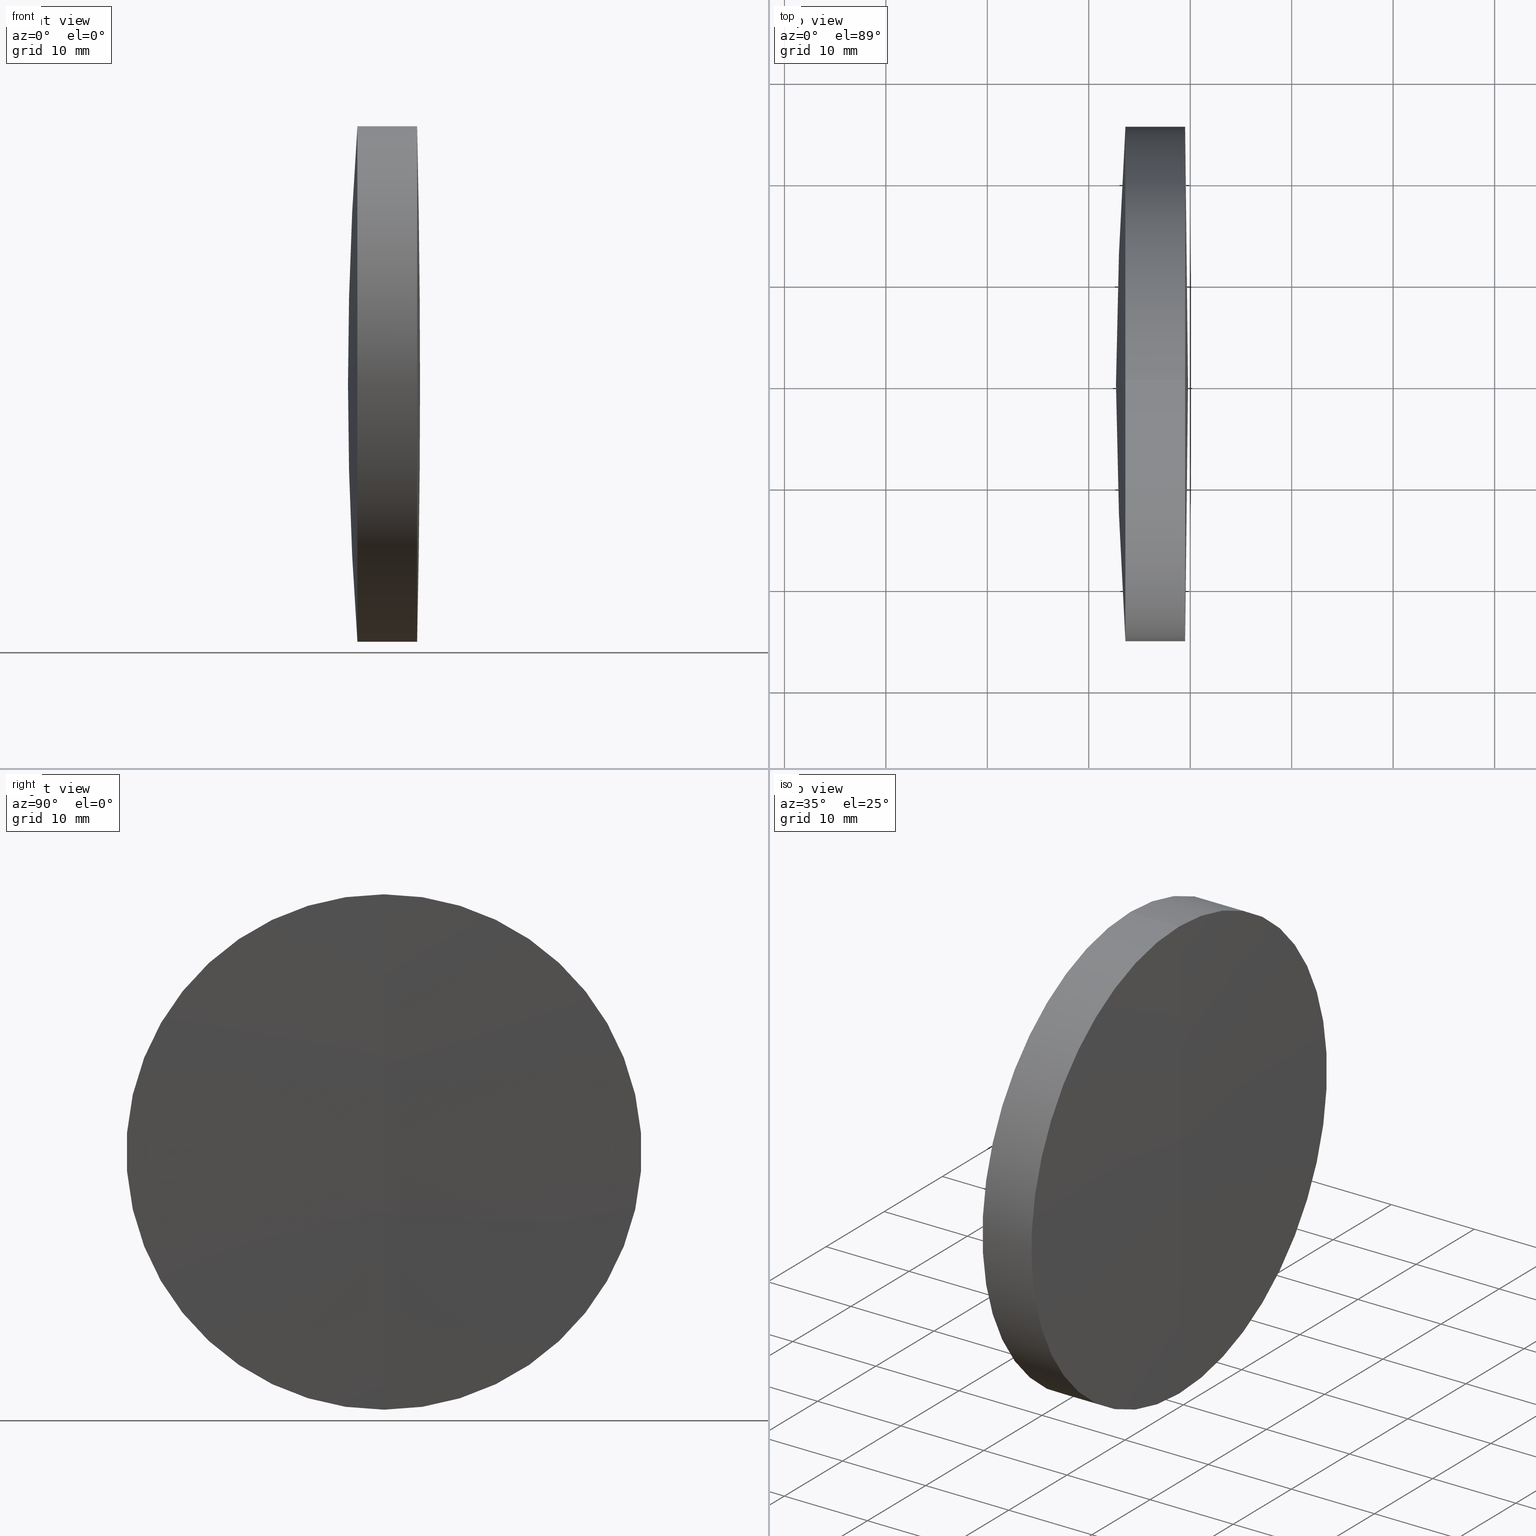
[diagram: canonical four-view strip — front | top / right | iso, engineering-drawing reading convention]
A machine part, canonical four-view strip (front | top / right | iso — engineering-drawing reading convention). The complete STEP part file that produces these views, byte-faithful:
ISO-10303-21;
HEADER;
FILE_DESCRIPTION (( 'STEP AP214' ),
    '1' );
FILE_NAME ('145141.STEP',
    '2019-06-05T05:40:33',
    ( 'user' ),
    ( '΢���й�' ),
    'SwSTEP 2.0',
    'SolidWorks 2016',
    '' );
FILE_SCHEMA (( 'AUTOMOTIVE_DESIGN' ));
ENDSEC;

DATA;
#1 = DIRECTION ( 'NONE',  ( 0.0000000000000000000, 0.0000000000000000000, 1.000000000000000000 ) ) ;
#2 = CARTESIAN_POINT ( 'NONE',  ( -412.6194407256770100, 0.0000000000000000000, 0.0000000000000000000 ) ) ;
#3 = SURFACE_STYLE_USAGE ( .BOTH. , #309 ) ;
#4 = DIRECTION ( 'NONE',  ( 0.0000000000000000000, 0.0000000000000000000, 1.000000000000000000 ) ) ;
#5 = AXIS2_PLACEMENT_3D ( 'NONE', #252, #202, #262 ) ;
#6 = EDGE_CURVE ( 'NONE', #163, #120, #19, .T. ) ;
#7 = PRODUCT_CONTEXT ( 'NONE', #278, 'mechanical' ) ;
#8 = CARTESIAN_POINT ( 'NONE',  ( 719.7805592743228500, 0.0000000000000000000, 6.933950176772312400E-014 ) ) ;
#9 = FACE_OUTER_BOUND ( 'NONE', #247, .T. ) ;
#10 = ORIENTED_EDGE ( 'NONE', *, *, #70, .F. ) ;
#11 = FILL_AREA_STYLE ('',( #84 ) ) ;
#12 = SHAPE_DEFINITION_REPRESENTATION ( #346, #165 ) ;
#13 = VERTEX_POINT ( 'NONE', #8 ) ;
#14 = AXIS2_PLACEMENT_3D ( 'NONE', #74, #158, #142 ) ;
#15 = DIRECTION ( 'NONE',  ( 0.0000000000000000000, 0.0000000000000000000, 1.000000000000000000 ) ) ;
#16 = DIRECTION ( 'NONE',  ( -1.000000000000000000, -0.0000000000000000000, -0.0000000000000000000 ) ) ;
#17 = DIRECTION ( 'NONE',  ( 0.0000000000000000000, 0.0000000000000000000, 1.000000000000000000 ) ) ;
#18 = ORIENTED_EDGE ( 'NONE', *, *, #317, .T. ) ;
#19 = CIRCLE ( 'NONE', #253, 25.40000000000006300 ) ;
#20 = STYLED_ITEM ( 'NONE', ( #178 ), #165 ) ;
#21 = DIRECTION ( 'NONE',  ( 0.0000000000000000000, 0.0000000000000000000, -1.000000000000000000 ) ) ;
#22 = AXIS2_PLACEMENT_3D ( 'NONE', #115, #271, #15 ) ;
#23 = ORIENTED_EDGE ( 'NONE', *, *, #141, .F. ) ;
#24 = PRODUCT_DEFINITION ( 'δ֪', '', #343, #174 ) ;
#25 = EDGE_LOOP ( 'NONE', ( #104, #276, #224 ) ) ;
#26 = ORIENTED_EDGE ( 'NONE', *, *, #148, .F. ) ;
#27 = FILL_AREA_STYLE ('',( #77 ) ) ;
#28 = SPHERICAL_SURFACE ( 'NONE', #242, 346.7000000000001000 ) ;
#29 = ORIENTED_EDGE ( 'NONE', *, *, #279, .T. ) ;
#30 = SPHERICAL_SURFACE ( 'NONE', #14, 259.3999999999999800 ) ;
#31 = DIRECTION ( 'NONE',  ( 0.0000000000000000000, 0.0000000000000000000, 1.000000000000000000 ) ) ;
#32 = AXIS2_PLACEMENT_3D ( 'NONE', #199, #325, #1 ) ;
#33 = DIRECTION ( 'NONE',  ( 0.0000000000000000000, -1.000000000000000000, 0.0000000000000000000 ) ) ;
#34 = MECHANICAL_DESIGN_GEOMETRIC_PRESENTATION_REPRESENTATION (  '', ( #20 ), #201 ) ;
#35 =( NAMED_UNIT ( * ) PLANE_ANGLE_UNIT ( ) SI_UNIT ( $, .RADIAN. ) );
#36 = ORIENTED_EDGE ( 'NONE', *, *, #179, .F. ) ;
#37 = ORIENTED_EDGE ( 'NONE', *, *, #50, .F. ) ;
#38 = AXIS2_PLACEMENT_3D ( 'NONE', #219, #275, #88 ) ;
#39 = SPHERICAL_SURFACE ( 'NONE', #289, 346.7000000000001000 ) ;
#40 = EDGE_CURVE ( 'NONE', #231, #59, #86, .T. ) ;
#41 = DIRECTION ( 'NONE',  ( 0.0000000000000000000, 0.0000000000000000000, 1.000000000000000000 ) ) ;
#42 = AXIS2_PLACEMENT_3D ( 'NONE', #312, #113, #118 ) ;
#43 = MANIFOLD_SOLID_BREP ( '��ת1', #338 ) ;
#44 = ORIENTED_EDGE ( 'NONE', *, *, #141, .T. ) ;
#45 = CIRCLE ( 'NONE', #5, 25.39999999999999100 ) ;
#46 = SPHERICAL_SURFACE ( 'NONE', #239, 1132.399999999999900 ) ;
#47 = ADVANCED_FACE ( 'NONE', ( #132 ), #145, .T. ) ;
#48 = MECHANICAL_DESIGN_GEOMETRIC_PRESENTATION_REPRESENTATION (  '', ( #63 ), #259 ) ;
#49 = CIRCLE ( 'NONE', #313, 25.40000000000006300 ) ;
#50 = EDGE_CURVE ( 'NONE', #168, #297, #187, .T. ) ;
#51 =( NAMED_UNIT ( * ) SI_UNIT ( $, .STERADIAN. ) SOLID_ANGLE_UNIT ( ) );
#52 = DIRECTION ( 'NONE',  ( 0.0000000000000000000, 1.000000000000000000, 0.0000000000000000000 ) ) ;
#53 = ORIENTED_EDGE ( 'NONE', *, *, #317, .F. ) ;
#54 = CIRCLE ( 'NONE', #206, 25.39999999999999100 ) ;
#55 = CARTESIAN_POINT ( 'NONE',  ( 124.5233095260452400, 0.0000000000000000000, 0.0000000000000000000 ) ) ;
#56 = EDGE_CURVE ( 'NONE', #59, #197, #265, .T. ) ;
#57 = AXIS2_PLACEMENT_3D ( 'NONE', #229, #258, #159 ) ;
#58 = CARTESIAN_POINT ( 'NONE',  ( 715.9340020172002100, 0.0000000000000000000, 0.0000000000000000000 ) ) ;
#59 = VERTEX_POINT ( 'NONE', #345 ) ;
#60 = EDGE_LOOP ( 'NONE', ( #53, #76, #44, #196 ) ) ;
#61 = DIRECTION ( 'NONE',  ( -1.000000000000000000, -0.0000000000000000000, -0.0000000000000000000 ) ) ;
#62 = ORIENTED_EDGE ( 'NONE', *, *, #194, .F. ) ;
#63 = STYLED_ITEM ( 'NONE', ( #269 ), #43 ) ;
#64 = DIRECTION ( 'NONE',  ( 0.0000000000000000000, 0.0000000000000000000, 1.000000000000000000 ) ) ;
#65 = EDGE_CURVE ( 'NONE', #297, #59, #336, .T. ) ;
#66 = FACE_OUTER_BOUND ( 'NONE', #332, .T. ) ;
#67 = CARTESIAN_POINT ( 'NONE',  ( 719.4956594297797200, 0.0000000000000000000, 0.0000000000000000000 ) ) ;
#68 = EDGE_LOOP ( 'NONE', ( #288, #18, #181, #23 ) ) ;
#69 = PRESENTATION_LAYER_ASSIGNMENT (  '', '', ( #20 ) ) ;
#70 = EDGE_CURVE ( 'NONE', #97, #120, #344, .T. ) ;
#71 = PRESENTATION_STYLE_ASSIGNMENT (( #3 ) ) ;
#72 = VECTOR ( 'NONE', #331, 1000.000000000000000 ) ;
#73 = CARTESIAN_POINT ( 'NONE',  ( -0.5519199926577972300, 3.110602869834265800E-015, -25.39999999999991000 ) ) ;
#74 = CARTESIAN_POINT ( 'NONE',  ( 457.7805592743230200, 0.0000000000000000000, -6.453996819439198100E-015 ) ) ;
#75 = VERTEX_POINT ( 'NONE', #302 ) ;
#76 = ORIENTED_EDGE ( 'NONE', *, *, #179, .T. ) ;
#77 = FILL_AREA_STYLE_COLOUR ( '', #130 ) ;
#78 = CARTESIAN_POINT ( 'NONE',  ( 715.9340020172002100, 0.0000000000000000000, 25.39999999999999100 ) ) ;
#79 = VERTEX_POINT ( 'NONE', #218 ) ;
#80 = CARTESIAN_POINT ( 'NONE',  ( 715.9340020172002100, 3.110602869834276100E-015, -25.39999999999999100 ) ) ;
#81 = AXIS2_PLACEMENT_3D ( 'NONE', #94, #33, #228 ) ;
#82 = CARTESIAN_POINT ( 'NONE',  ( -0.5519199926577972300, 0.0000000000000000000, 25.39999999999991000 ) ) ;
#83 = CARTESIAN_POINT ( 'NONE',  ( 124.5233095260452400, 0.0000000000000000000, 25.39999999999999100 ) ) ;
#84 = FILL_AREA_STYLE_COLOUR ( '', #291 ) ;
#85 = CYLINDRICAL_SURFACE ( 'NONE', #192, 25.39999999999999100 ) ;
#86 = LINE ( 'NONE', #250, #125 ) ;
#87 = ADVANCED_FACE ( 'NONE', ( #274 ), #28, .T. ) ;
#88 = DIRECTION ( 'NONE',  ( 0.0000000000000000000, 0.0000000000000000000, -1.000000000000000000 ) ) ;
#89 = DIRECTION ( 'NONE',  ( 0.0000000000000000000, 0.0000000000000000000, 1.000000000000000000 ) ) ;
#90 = CARTESIAN_POINT ( 'NONE',  ( 715.9340020172002100, 0.0000000000000000000, 0.0000000000000000000 ) ) ;
#91 = CARTESIAN_POINT ( 'NONE',  ( 1059.380559274323100, 0.0000000000000000000, -5.039959363390816900E-015 ) ) ;
#92 = EDGE_LOOP ( 'NONE', ( #261, #152, #154 ) ) ;
#93 = PRESENTATION_LAYER_ASSIGNMENT (  '', '', ( #63 ) ) ;
#94 = CARTESIAN_POINT ( 'NONE',  ( -412.6194407256770100, 0.0000000000000000000, 0.0000000000000000000 ) ) ;
#95 = DIRECTION ( 'NONE',  ( -1.000000000000000000, -0.0000000000000000000, -0.0000000000000000000 ) ) ;
#96 = ORIENTED_EDGE ( 'NONE', *, *, #148, .T. ) ;
#97 = VERTEX_POINT ( 'NONE', #112 ) ;
#98 = CARTESIAN_POINT ( 'NONE',  ( 1059.380559274323100, 0.0000000000000000000, -5.039959363390816900E-015 ) ) ;
#99 = VECTOR ( 'NONE', #16, 1000.000000000000000 ) ;
#100 = APPLICATION_PROTOCOL_DEFINITION ( 'draft international standard', 'automotive_design', 1998, #278 ) ;
#101 = CIRCLE ( 'NONE', #42, 259.3999999999999800 ) ;
#102 = CARTESIAN_POINT ( 'NONE',  ( 457.7805592743230200, 0.0000000000000000000, -6.453996819439198100E-015 ) ) ;
#103 = AXIS2_PLACEMENT_3D ( 'NONE', #232, #4, #272 ) ;
#104 = ORIENTED_EDGE ( 'NONE', *, *, #335, .F. ) ;
#105 = PRODUCT ( '145141', '145141', '', ( #7 ) ) ;
#106 = ORIENTED_EDGE ( 'NONE', *, *, #56, .T. ) ;
#107 = AXIS2_PLACEMENT_3D ( 'NONE', #127, #347, #327 ) ;
#108 = DIRECTION ( 'NONE',  ( 0.0000000000000000000, 1.000000000000000000, 0.0000000000000000000 ) ) ;
#109 = DIRECTION ( 'NONE',  ( -1.000000000000000000, -0.0000000000000000000, -0.0000000000000000000 ) ) ;
#110 = AXIS2_PLACEMENT_3D ( 'NONE', #341, #214, #21 ) ;
#111 = EDGE_CURVE ( 'NONE', #120, #163, #49, .T. ) ;
#112 = CARTESIAN_POINT ( 'NONE',  ( 717.1805592743230600, 0.0000000000000000000, 9.429672165501970000E-015 ) ) ;
#113 = DIRECTION ( 'NONE',  ( -0.0000000000000000000, 1.000000000000000000, 1.224646799147353200E-016 ) ) ;
#114 = CARTESIAN_POINT ( 'NONE',  ( -0.5519199926577972300, 0.0000000000000000000, 0.0000000000000000000 ) ) ;
#115 = CARTESIAN_POINT ( 'NONE',  ( 713.6122408875742200, 0.0000000000000000000, 0.0000000000000000000 ) ) ;
#116 = DIRECTION ( 'NONE',  ( 0.0000000000000000000, 1.000000000000000000, 0.0000000000000000000 ) ) ;
#117 = MECHANICAL_DESIGN_GEOMETRIC_PRESENTATION_REPRESENTATION (  '', ( #213 ), #155 ) ;
#118 = DIRECTION ( 'NONE',  ( 0.0000000000000000000, -1.224646799147353200E-016, 1.000000000000000000 ) ) ;
#119 = CARTESIAN_POINT ( 'NONE',  ( 457.7805592743230200, 0.0000000000000000000, -6.453996819439198100E-015 ) ) ;
#120 = VERTEX_POINT ( 'NONE', #221 ) ;
#121 = DIRECTION ( 'NONE',  ( 0.0000000000000000000, -1.000000000000000000, 0.0000000000000000000 ) ) ;
#122 = CARTESIAN_POINT ( 'NONE',  ( 713.6122408875742200, 0.0000000000000000000, 0.0000000000000000000 ) ) ;
#123 = AXIS2_PLACEMENT_3D ( 'NONE', #119, #116, #17 ) ;
#124 = ORIENTED_EDGE ( 'NONE', *, *, #186, .T. ) ;
#125 = VECTOR ( 'NONE', #61, 1000.000000000000000 ) ;
#126 = CLOSED_SHELL ( 'NONE', ( #47, #326, #287, #266, #147, #235 ) ) ;
#127 = CARTESIAN_POINT ( 'NONE',  ( 1059.380559274323100, 0.0000000000000000000, -5.039959363390816900E-015 ) ) ;
#128 = CARTESIAN_POINT ( 'NONE',  ( 717.1805592743230600, 0.0000000000000000000, 9.429672165501970000E-015 ) ) ;
#129 = DIRECTION ( 'NONE',  ( 0.0000000000000000000, 0.0000000000000000000, 1.000000000000000000 ) ) ;
#130 = COLOUR_RGB ( '',1.000000000000000000, 1.000000000000000000, 1.000000000000000000 ) ;
#131 = DIRECTION ( 'NONE',  ( -1.000000000000000000, -0.0000000000000000000, -0.0000000000000000000 ) ) ;
#132 = FACE_OUTER_BOUND ( 'NONE', #268, .T. ) ;
#133 = CIRCLE ( 'NONE', #285, 259.3999999999999800 ) ;
#134 = AXIS2_PLACEMENT_3D ( 'NONE', #114, #306, #41 ) ;
#135 = EDGE_LOOP ( 'NONE', ( #26, #321, #175 ) ) ;
#136 = ADVANCED_FACE ( 'NONE', ( #9 ), #85, .T. ) ;
#137 = SURFACE_SIDE_STYLE ('',( #328 ) ) ;
#138 = AXIS2_PLACEMENT_3D ( 'NONE', #298, #109, #31 ) ;
#139 = SURFACE_STYLE_FILL_AREA ( #248 ) ;
#140 = EDGE_LOOP ( 'NONE', ( #150, #236, #234 ) ) ;
#141 = EDGE_CURVE ( 'NONE', #75, #120, #225, .T. ) ;
#142 = DIRECTION ( 'NONE',  ( 0.0000000000000000000, 0.0000000000000000000, 1.000000000000000000 ) ) ;
#143 = DIRECTION ( 'NONE',  ( -1.000000000000000000, -0.0000000000000000000, -0.0000000000000000000 ) ) ;
#144 = AXIS2_PLACEMENT_3D ( 'NONE', #122, #183, #160 ) ;
#145 = SPHERICAL_SURFACE ( 'NONE', #32, 1132.399999999999900 ) ;
#146 = ORIENTED_EDGE ( 'NONE', *, *, #227, .T. ) ;
#147 = ADVANCED_FACE ( 'NONE', ( #237 ), #318, .T. ) ;
#148 = EDGE_CURVE ( 'NONE', #97, #163, #101, .T. ) ;
#149 = ORIENTED_EDGE ( 'NONE', *, *, #40, .F. ) ;
#150 = ORIENTED_EDGE ( 'NONE', *, *, #56, .F. ) ;
#151 =( LENGTH_UNIT ( ) NAMED_UNIT ( * ) SI_UNIT ( .MILLI., .METRE. ) );
#152 = ORIENTED_EDGE ( 'NONE', *, *, #335, .T. ) ;
#153 = UNCERTAINTY_MEASURE_WITH_UNIT (LENGTH_MEASURE( 1.000000000000000100E-005 ), #216, 'distance_accuracy_value', 'NONE');
#154 = ORIENTED_EDGE ( 'NONE', *, *, #279, .F. ) ;
#155 =( GEOMETRIC_REPRESENTATION_CONTEXT ( 3 ) GLOBAL_UNCERTAINTY_ASSIGNED_CONTEXT ( ( #200 ) ) GLOBAL_UNIT_ASSIGNED_CONTEXT ( ( #193, #254, #257 ) ) REPRESENTATION_CONTEXT ( 'NONE', 'WORKASPACE' ) );
#156 = DIRECTION ( 'NONE',  ( -1.000000000000000000, -0.0000000000000000000, -0.0000000000000000000 ) ) ;
#157 = ORIENTED_EDGE ( 'NONE', *, *, #230, .F. ) ;
#158 = DIRECTION ( 'NONE',  ( 0.0000000000000000000, 1.000000000000000000, 0.0000000000000000000 ) ) ;
#159 = DIRECTION ( 'NONE',  ( 0.0000000000000000000, 0.0000000000000000000, 1.000000000000000000 ) ) ;
#160 = DIRECTION ( 'NONE',  ( 0.0000000000000000000, 0.0000000000000000000, 1.000000000000000000 ) ) ;
#161 = DIRECTION ( 'NONE',  ( 0.0000000000000000000, 1.000000000000000000, 0.0000000000000000000 ) ) ;
#162 = DIRECTION ( 'NONE',  ( 0.0000000000000000000, 0.0000000000000000000, 1.000000000000000000 ) ) ;
#163 = VERTEX_POINT ( 'NONE', #245 ) ;
#164 = FACE_OUTER_BOUND ( 'NONE', #92, .T. ) ;
#165 = ADVANCED_BREP_SHAPE_REPRESENTATION ( '145141', ( #43, #188, #103 ), #273 ) ;
#166 = CARTESIAN_POINT ( 'NONE',  ( 715.9340020172002100, 0.0000000000000000000, 0.0000000000000000000 ) ) ;
#167 = SURFACE_STYLE_USAGE ( .BOTH. , #270 ) ;
#168 = VERTEX_POINT ( 'NONE', #78 ) ;
#169 = EDGE_CURVE ( 'NONE', #168, #231, #54, .T. ) ;
#170 = DIRECTION ( 'NONE',  ( 0.0000000000000000000, 0.0000000000000000000, 1.000000000000000000 ) ) ;
#171 = DIRECTION ( 'NONE',  ( -0.0000000000000000000, 1.000000000000000000, 1.224646799147353200E-016 ) ) ;
#172 = APPLICATION_PROTOCOL_DEFINITION ( 'draft international standard', 'automotive_design', 1998, #180 ) ;
#173 = ORIENTED_EDGE ( 'NONE', *, *, #65, .F. ) ;
#174 = PRODUCT_DEFINITION_CONTEXT ( 'detailed design', #180, 'design' ) ;
#175 = ORIENTED_EDGE ( 'NONE', *, *, #111, .T. ) ;
#176 = ADVANCED_FACE ( 'NONE', ( #66 ), #293, .T. ) ;
#177 = AXIS2_PLACEMENT_3D ( 'NONE', #185, #233, #170 ) ;
#178 = PRESENTATION_STYLE_ASSIGNMENT (( #167 ) ) ;
#179 = EDGE_CURVE ( 'NONE', #79, #75, #281, .T. ) ;
#180 = APPLICATION_CONTEXT ( 'automotive_design' ) ;
#181 = ORIENTED_EDGE ( 'NONE', *, *, #111, .F. ) ;
#182 = SPHERICAL_SURFACE ( 'NONE', #123, 259.3999999999999800 ) ;
#183 = DIRECTION ( 'NONE',  ( -1.000000000000000000, -0.0000000000000000000, -0.0000000000000000000 ) ) ;
#184 = PRESENTATION_LAYER_ASSIGNMENT (  '', '', ( #213 ) ) ;
#185 = CARTESIAN_POINT ( 'NONE',  ( 457.7805592743230200, 0.0000000000000000000, -6.453996819439198100E-015 ) ) ;
#186 = EDGE_CURVE ( 'NONE', #13, #75, #329, .T. ) ;
#187 = LINE ( 'NONE', #83, #99 ) ;
#188 = MANIFOLD_SOLID_BREP ( '��ת3', #126 ) ;
#189 = DIRECTION ( 'NONE',  ( 0.0000000000000000000, 0.0000000000000000000, 1.000000000000000000 ) ) ;
#190 = FACE_OUTER_BOUND ( 'NONE', #25, .T. ) ;
#191 = DIRECTION ( 'NONE',  ( -0.0000000000000000000, 1.000000000000000000, 1.224646799147353200E-016 ) ) ;
#192 = AXIS2_PLACEMENT_3D ( 'NONE', #55, #251, #203 ) ;
#193 =( LENGTH_UNIT ( ) NAMED_UNIT ( * ) SI_UNIT ( .MILLI., .METRE. ) );
#194 = EDGE_CURVE ( 'NONE', #75, #79, #205, .T. ) ;
#195 = FILL_AREA_STYLE_COLOUR ( '', #311 ) ;
#196 = ORIENTED_EDGE ( 'NONE', *, *, #6, .F. ) ;
#197 = VERTEX_POINT ( 'NONE', #290 ) ;
#198 = SPHERICAL_SURFACE ( 'NONE', #177, 259.3999999999999800 ) ;
#199 = CARTESIAN_POINT ( 'NONE',  ( -412.6194407256770100, 0.0000000000000000000, 0.0000000000000000000 ) ) ;
#200 = UNCERTAINTY_MEASURE_WITH_UNIT (LENGTH_MEASURE( 1.000000000000000100E-005 ), #193, 'distance_accuracy_value', 'NONE');
#201 =( GEOMETRIC_REPRESENTATION_CONTEXT ( 3 ) GLOBAL_UNCERTAINTY_ASSIGNED_CONTEXT ( ( #153 ) ) GLOBAL_UNIT_ASSIGNED_CONTEXT ( ( #216, #342, #51 ) ) REPRESENTATION_CONTEXT ( 'NONE', 'WORKASPACE' ) );
#202 = DIRECTION ( 'NONE',  ( -1.000000000000000000, -0.0000000000000000000, -0.0000000000000000000 ) ) ;
#203 = DIRECTION ( 'NONE',  ( 0.0000000000000000000, 0.0000000000000000000, 1.000000000000000000 ) ) ;
#204 = FACE_OUTER_BOUND ( 'NONE', #140, .T. ) ;
#205 = CIRCLE ( 'NONE', #226, 25.39999999999975700 ) ;
#206 = AXIS2_PLACEMENT_3D ( 'NONE', #90, #131, #334 ) ;
#207 = VERTEX_POINT ( 'NONE', #128 ) ;
#208 = EDGE_CURVE ( 'NONE', #207, #231, #314, .T. ) ;
#209 = LINE ( 'NONE', #73, #72 ) ;
#210 = CARTESIAN_POINT ( 'NONE',  ( 457.7805592743230200, 0.0000000000000000000, -6.453996819439198100E-015 ) ) ;
#211 = ORIENTED_EDGE ( 'NONE', *, *, #186, .F. ) ;
#212 = DIRECTION ( 'NONE',  ( -1.000000000000000000, -0.0000000000000000000, -0.0000000000000000000 ) ) ;
#213 = STYLED_ITEM ( 'NONE', ( #71 ), #188 ) ;
#214 = DIRECTION ( 'NONE',  ( 0.0000000000000000000, -1.000000000000000000, 0.0000000000000000000 ) ) ;
#215 = VECTOR ( 'NONE', #156, 1000.000000000000000 ) ;
#216 =( LENGTH_UNIT ( ) NAMED_UNIT ( * ) SI_UNIT ( .MILLI., .METRE. ) );
#217 = FACE_OUTER_BOUND ( 'NONE', #135, .T. ) ;
#218 = CARTESIAN_POINT ( 'NONE',  ( 719.4956594297797200, 3.110602869834256700E-015, -25.39999999999975700 ) ) ;
#219 = CARTESIAN_POINT ( 'NONE',  ( 457.7805592743230200, 0.0000000000000000000, -6.453996819439198100E-015 ) ) ;
#220 = AXIS2_PLACEMENT_3D ( 'NONE', #337, #52, #244 ) ;
#221 = CARTESIAN_POINT ( 'NONE',  ( 715.9340020172002100, 0.0000000000000000000, 25.39999999999994500 ) ) ;
#222 = EDGE_LOOP ( 'NONE', ( #280, #106, #157 ) ) ;
#223 = DIRECTION ( 'NONE',  ( -1.000000000000000000, -0.0000000000000000000, -0.0000000000000000000 ) ) ;
#224 = ORIENTED_EDGE ( 'NONE', *, *, #169, .F. ) ;
#225 = LINE ( 'NONE', #82, #215 ) ;
#226 = AXIS2_PLACEMENT_3D ( 'NONE', #67, #95, #89 ) ;
#227 = EDGE_CURVE ( 'NONE', #13, #79, #340, .T. ) ;
#228 = DIRECTION ( 'NONE',  ( 0.0000000000000000000, 0.0000000000000000000, -1.000000000000000000 ) ) ;
#229 = CARTESIAN_POINT ( 'NONE',  ( 124.5233095260452400, 0.0000000000000000000, 0.0000000000000000000 ) ) ;
#230 = EDGE_CURVE ( 'NONE', #297, #197, #316, .T. ) ;
#231 = VERTEX_POINT ( 'NONE', #80 ) ;
#232 = CARTESIAN_POINT ( 'NONE',  ( 0.0000000000000000000, 0.0000000000000000000, 0.0000000000000000000 ) ) ;
#233 = DIRECTION ( 'NONE',  ( 0.0000000000000000000, 1.000000000000000000, 0.0000000000000000000 ) ) ;
#234 = ORIENTED_EDGE ( 'NONE', *, *, #230, .T. ) ;
#235 = ADVANCED_FACE ( 'NONE', ( #307 ), #46, .T. ) ;
#236 = ORIENTED_EDGE ( 'NONE', *, *, #296, .T. ) ;
#237 = FACE_OUTER_BOUND ( 'NONE', #60, .T. ) ;
#238 = CIRCLE ( 'NONE', #144, 25.39999999999999100 ) ;
#239 = AXIS2_PLACEMENT_3D ( 'NONE', #2, #108, #129 ) ;
#240 = EDGE_LOOP ( 'NONE', ( #299, #124, #36 ) ) ;
#241 = CARTESIAN_POINT ( 'NONE',  ( -412.6194407256770100, 0.0000000000000000000, 0.0000000000000000000 ) ) ;
#242 = AXIS2_PLACEMENT_3D ( 'NONE', #91, #260, #283 ) ;
#243 =( LENGTH_UNIT ( ) NAMED_UNIT ( * ) SI_UNIT ( .MILLI., .METRE. ) );
#244 = DIRECTION ( 'NONE',  ( 0.0000000000000000000, 0.0000000000000000000, 1.000000000000000000 ) ) ;
#245 = CARTESIAN_POINT ( 'NONE',  ( 715.9340020172002100, 3.110602869834270600E-015, -25.39999999999995200 ) ) ;
#246 = ORIENTED_EDGE ( 'NONE', *, *, #169, .T. ) ;
#247 = EDGE_LOOP ( 'NONE', ( #149, #29, #292, #286 ) ) ;
#248 = FILL_AREA_STYLE ('',( #195 ) ) ;
#249 = FACE_OUTER_BOUND ( 'NONE', #68, .T. ) ;
#250 = CARTESIAN_POINT ( 'NONE',  ( 124.5233095260452400, 3.110602869834276100E-015, -25.39999999999999100 ) ) ;
#251 = DIRECTION ( 'NONE',  ( -1.000000000000000000, -0.0000000000000000000, -0.0000000000000000000 ) ) ;
#252 = CARTESIAN_POINT ( 'NONE',  ( 715.9340020172002100, 0.0000000000000000000, 0.0000000000000000000 ) ) ;
#253 = AXIS2_PLACEMENT_3D ( 'NONE', #166, #143, #64 ) ;
#254 =( NAMED_UNIT ( * ) PLANE_ANGLE_UNIT ( ) SI_UNIT ( $, .RADIAN. ) );
#255 = ORIENTED_EDGE ( 'NONE', *, *, #6, .T. ) ;
#256 =( NAMED_UNIT ( * ) PLANE_ANGLE_UNIT ( ) SI_UNIT ( $, .RADIAN. ) );
#257 =( NAMED_UNIT ( * ) SI_UNIT ( $, .STERADIAN. ) SOLID_ANGLE_UNIT ( ) );
#258 = DIRECTION ( 'NONE',  ( -1.000000000000000000, -0.0000000000000000000, -0.0000000000000000000 ) ) ;
#259 =( GEOMETRIC_REPRESENTATION_CONTEXT ( 3 ) GLOBAL_UNCERTAINTY_ASSIGNED_CONTEXT ( ( #282 ) ) GLOBAL_UNIT_ASSIGNED_CONTEXT ( ( #243, #256, #330 ) ) REPRESENTATION_CONTEXT ( 'NONE', 'WORKASPACE' ) );
#260 = DIRECTION ( 'NONE',  ( 0.0000000000000000000, 1.000000000000000000, 0.0000000000000000000 ) ) ;
#261 = ORIENTED_EDGE ( 'NONE', *, *, #208, .F. ) ;
#262 = DIRECTION ( 'NONE',  ( 0.0000000000000000000, 0.0000000000000000000, 1.000000000000000000 ) ) ;
#263 = ADVANCED_FACE ( 'NONE', ( #190 ), #284, .T. ) ;
#264 = PRODUCT_RELATED_PRODUCT_CATEGORY ( 'part', '', ( #105 ) ) ;
#265 = CIRCLE ( 'NONE', #107, 346.7000000000001000 ) ;
#266 = ADVANCED_FACE ( 'NONE', ( #217 ), #198, .F. ) ;
#267 = DIRECTION ( 'NONE',  ( 0.0000000000000000000, 0.0000000000000000000, 1.000000000000000000 ) ) ;
#268 = EDGE_LOOP ( 'NONE', ( #211, #146, #62 ) ) ;
#269 = PRESENTATION_STYLE_ASSIGNMENT (( #300 ) ) ;
#270 = SURFACE_SIDE_STYLE ('',( #315 ) ) ;
#271 = DIRECTION ( 'NONE',  ( -1.000000000000000000, -0.0000000000000000000, -0.0000000000000000000 ) ) ;
#272 = DIRECTION ( 'NONE',  ( 1.000000000000000000, 0.0000000000000000000, 0.0000000000000000000 ) ) ;
#273 =( GEOMETRIC_REPRESENTATION_CONTEXT ( 3 ) GLOBAL_UNCERTAINTY_ASSIGNED_CONTEXT ( ( #324 ) ) GLOBAL_UNIT_ASSIGNED_CONTEXT ( ( #151, #35, #310 ) ) REPRESENTATION_CONTEXT ( 'NONE', 'WORKASPACE' ) );
#274 = FACE_OUTER_BOUND ( 'NONE', #222, .T. ) ;
#275 = DIRECTION ( 'NONE',  ( 0.0000000000000000000, -1.000000000000000000, 0.0000000000000000000 ) ) ;
#276 = ORIENTED_EDGE ( 'NONE', *, *, #208, .T. ) ;
#277 = DIRECTION ( 'NONE',  ( 0.0000000000000000000, -1.224646799147353200E-016, 1.000000000000000000 ) ) ;
#278 = APPLICATION_CONTEXT ( 'automotive_design' ) ;
#279 = EDGE_CURVE ( 'NONE', #231, #168, #45, .T. ) ;
#280 = ORIENTED_EDGE ( 'NONE', *, *, #65, .T. ) ;
#281 = CIRCLE ( 'NONE', #138, 25.39999999999975700 ) ;
#282 = UNCERTAINTY_MEASURE_WITH_UNIT (LENGTH_MEASURE( 1.000000000000000100E-005 ), #243, 'distance_accuracy_value', 'NONE');
#283 = DIRECTION ( 'NONE',  ( 0.0000000000000000000, 0.0000000000000000000, 1.000000000000000000 ) ) ;
#284 = SPHERICAL_SURFACE ( 'NONE', #220, 259.3999999999999800 ) ;
#285 = AXIS2_PLACEMENT_3D ( 'NONE', #210, #121, #320 ) ;
#286 = ORIENTED_EDGE ( 'NONE', *, *, #296, .F. ) ;
#287 = ADVANCED_FACE ( 'NONE', ( #323 ), #182, .F. ) ;
#288 = ORIENTED_EDGE ( 'NONE', *, *, #194, .T. ) ;
#289 = AXIS2_PLACEMENT_3D ( 'NONE', #98, #161, #189 ) ;
#290 = CARTESIAN_POINT ( 'NONE',  ( 712.6805592743229500, 0.0000000000000000000, 1.618929289982855800E-014 ) ) ;
#291 = COLOUR_RGB ( '',1.000000000000000000, 1.000000000000000000, 1.000000000000000000 ) ;
#292 = ORIENTED_EDGE ( 'NONE', *, *, #50, .T. ) ;
#293 = CYLINDRICAL_SURFACE ( 'NONE', #57, 25.39999999999999100 ) ;
#294 = AXIS2_PLACEMENT_3D ( 'NONE', #241, #171, #301 ) ;
#295 = ADVANCED_FACE ( 'NONE', ( #164 ), #30, .T. ) ;
#296 = EDGE_CURVE ( 'NONE', #59, #297, #238, .T. ) ;
#297 = VERTEX_POINT ( 'NONE', #305 ) ;
#298 = CARTESIAN_POINT ( 'NONE',  ( 719.4956594297797200, 0.0000000000000000000, 0.0000000000000000000 ) ) ;
#299 = ORIENTED_EDGE ( 'NONE', *, *, #227, .F. ) ;
#300 = SURFACE_STYLE_USAGE ( .BOTH. , #137 ) ;
#301 = DIRECTION ( 'NONE',  ( 0.0000000000000000000, -1.224646799147353200E-016, 1.000000000000000000 ) ) ;
#302 = CARTESIAN_POINT ( 'NONE',  ( 719.4956594297797200, 0.0000000000000000000, 25.39999999999975700 ) ) ;
#303 = AXIS2_PLACEMENT_3D ( 'NONE', #308, #212, #267 ) ;
#304 = ORIENTED_EDGE ( 'NONE', *, *, #40, .T. ) ;
#305 = CARTESIAN_POINT ( 'NONE',  ( 713.6122408875742200, 0.0000000000000000000, 25.39999999999991300 ) ) ;
#306 = DIRECTION ( 'NONE',  ( -1.000000000000000000, -0.0000000000000000000, -0.0000000000000000000 ) ) ;
#307 = FACE_OUTER_BOUND ( 'NONE', #240, .T. ) ;
#308 = CARTESIAN_POINT ( 'NONE',  ( -0.5519199926577972300, 0.0000000000000000000, 0.0000000000000000000 ) ) ;
#309 = SURFACE_SIDE_STYLE ('',( #139 ) ) ;
#310 =( NAMED_UNIT ( * ) SI_UNIT ( $, .STERADIAN. ) SOLID_ANGLE_UNIT ( ) );
#311 = COLOUR_RGB ( '',1.000000000000000000, 1.000000000000000000, 1.000000000000000000 ) ;
#312 = CARTESIAN_POINT ( 'NONE',  ( 457.7805592743230200, 0.0000000000000000000, -6.453996819439198100E-015 ) ) ;
#313 = AXIS2_PLACEMENT_3D ( 'NONE', #58, #223, #162 ) ;
#314 = CIRCLE ( 'NONE', #319, 259.3999999999999800 ) ;
#315 = SURFACE_STYLE_FILL_AREA ( #11 ) ;
#316 = CIRCLE ( 'NONE', #110, 346.7000000000001000 ) ;
#317 = EDGE_CURVE ( 'NONE', #79, #163, #209, .T. ) ;
#318 = CYLINDRICAL_SURFACE ( 'NONE', #134, 25.39999999999991000 ) ;
#319 = AXIS2_PLACEMENT_3D ( 'NONE', #102, #191, #277 ) ;
#320 = DIRECTION ( 'NONE',  ( 0.0000000000000000000, 0.0000000000000000000, -1.000000000000000000 ) ) ;
#321 = ORIENTED_EDGE ( 'NONE', *, *, #70, .T. ) ;
#322 = EDGE_LOOP ( 'NONE', ( #10, #96, #255 ) ) ;
#323 = FACE_OUTER_BOUND ( 'NONE', #322, .T. ) ;
#324 = UNCERTAINTY_MEASURE_WITH_UNIT (LENGTH_MEASURE( 1.000000000000000100E-005 ), #151, 'distance_accuracy_value', 'NONE');
#325 = DIRECTION ( 'NONE',  ( 0.0000000000000000000, 1.000000000000000000, 0.0000000000000000000 ) ) ;
#326 = ADVANCED_FACE ( 'NONE', ( #249 ), #333, .T. ) ;
#327 = DIRECTION ( 'NONE',  ( 0.0000000000000000000, -1.224646799147353500E-016, 1.000000000000000000 ) ) ;
#328 = SURFACE_STYLE_FILL_AREA ( #27 ) ;
#329 = CIRCLE ( 'NONE', #81, 1132.399999999999900 ) ;
#330 =( NAMED_UNIT ( * ) SI_UNIT ( $, .STERADIAN. ) SOLID_ANGLE_UNIT ( ) );
#331 = DIRECTION ( 'NONE',  ( -1.000000000000000000, -0.0000000000000000000, -0.0000000000000000000 ) ) ;
#332 = EDGE_LOOP ( 'NONE', ( #246, #304, #173, #37 ) ) ;
#333 = CYLINDRICAL_SURFACE ( 'NONE', #303, 25.39999999999991000 ) ;
#334 = DIRECTION ( 'NONE',  ( 0.0000000000000000000, 0.0000000000000000000, 1.000000000000000000 ) ) ;
#335 = EDGE_CURVE ( 'NONE', #207, #168, #133, .T. ) ;
#336 = CIRCLE ( 'NONE', #22, 25.39999999999999100 ) ;
#337 = CARTESIAN_POINT ( 'NONE',  ( 457.7805592743230200, 0.0000000000000000000, -6.453996819439198100E-015 ) ) ;
#338 = CLOSED_SHELL ( 'NONE', ( #263, #176, #87, #339, #136, #295 ) ) ;
#339 = ADVANCED_FACE ( 'NONE', ( #204 ), #39, .T. ) ;
#340 = CIRCLE ( 'NONE', #294, 1132.399999999999900 ) ;
#341 = CARTESIAN_POINT ( 'NONE',  ( 1059.380559274323100, 0.0000000000000000000, -5.039959363390816900E-015 ) ) ;
#342 =( NAMED_UNIT ( * ) PLANE_ANGLE_UNIT ( ) SI_UNIT ( $, .RADIAN. ) );
#343 = PRODUCT_DEFINITION_FORMATION_WITH_SPECIFIED_SOURCE ( '�κ�', '', #105, .NOT_KNOWN. ) ;
#344 = CIRCLE ( 'NONE', #38, 259.3999999999999800 ) ;
#345 = CARTESIAN_POINT ( 'NONE',  ( 713.6122408875742200, 3.110602869834266600E-015, -25.39999999999991700 ) ) ;
#346 = PRODUCT_DEFINITION_SHAPE ( 'NONE', 'NONE',  #24 ) ;
#347 = DIRECTION ( 'NONE',  ( -0.0000000000000000000, 1.000000000000000000, 1.224646799147353200E-016 ) ) ;
ENDSEC;
END-ISO-10303-21;
